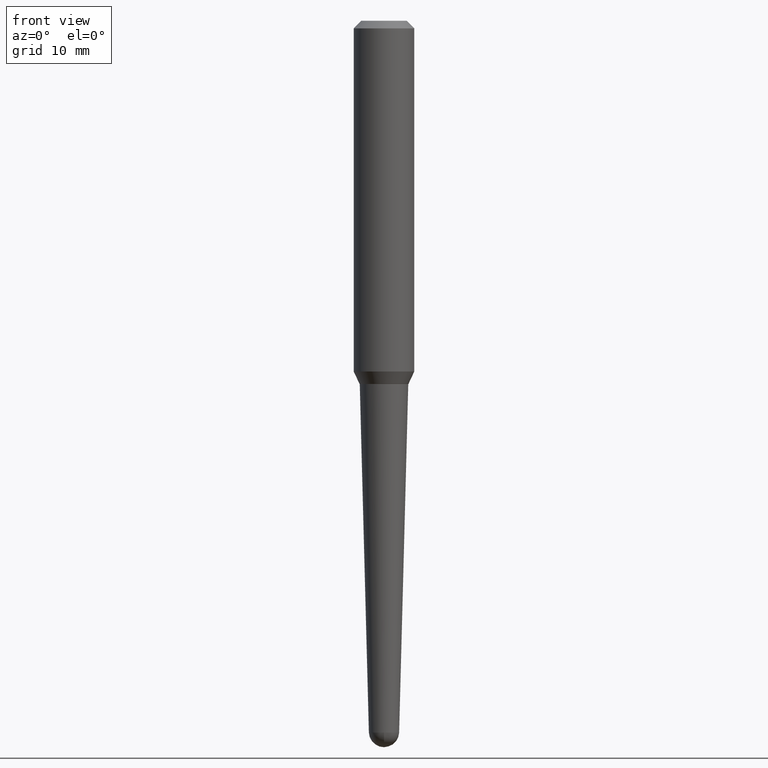
[diagram: clean part render]
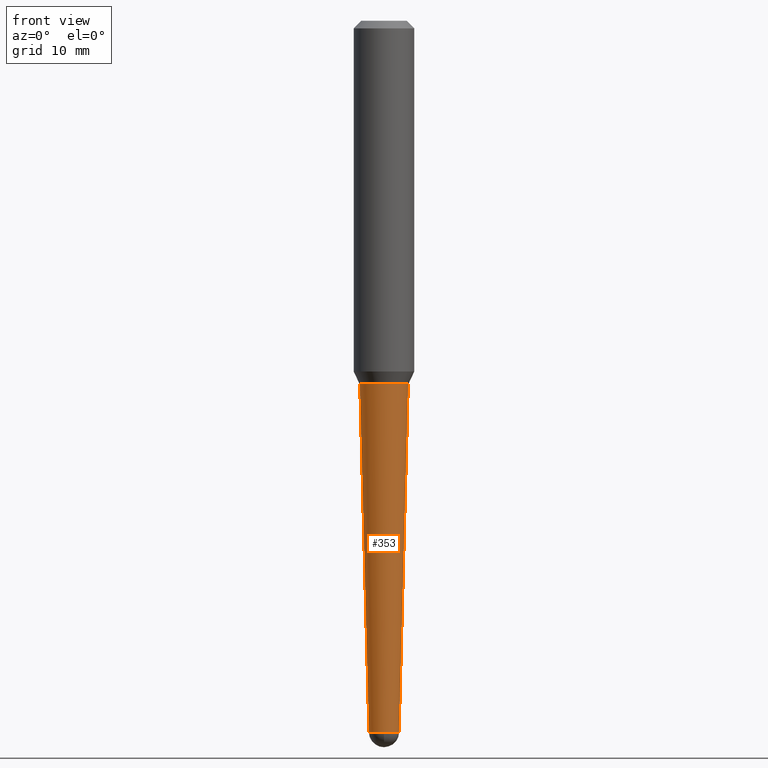
[diagram: same view with one face highlighted and labeled with its STEP entity id]
A machine part, front view. The second image highlights one B-rep face of the part: STEP entity #353.
In plain terms, the highlighted conical surface has half-angle 1.5 deg.
Its self-contained STEP definition (entity closure, byte-faithful):
#1 = ORIENTED_EDGE ( 'NONE', *, *, #314, .F. ) ;
#3 = EDGE_CURVE ( 'NONE', #26, #160, #276, .T. ) ;
#9 = DIRECTION ( 'NONE',  ( 1.000000000000000000, -6.982962677686277755E-15, 0.000000000000000000 ) ) ;
#15 = CARTESIAN_POINT ( 'NONE',  ( -0.06247858281097278671, -9.818001671690315419E-15, -2.939136059269242374 ) ) ;
#16 = VERTEX_POINT ( 'NONE', #432 ) ;
#20 = CARTESIAN_POINT ( 'NONE',  ( 7.187565550076840817E-29, -1.026193870325954003E-14, -2.939136059269242374 ) ) ;
#26 = VERTEX_POINT ( 'NONE', #319 ) ;
#28 = AXIS2_PLACEMENT_3D ( 'NONE', #116, #363, #9 ) ;
#66 = VECTOR ( 'NONE', #250, 39.37007874015748854 ) ;
#73 = CONICAL_SURFACE ( 'NONE', #381, 0.06247858281097278671, 0.02617993877991489637 ) ;
#83 = DIRECTION ( 'NONE',  ( 1.000000000000000000, -6.982962677686277755E-15, 0.000000000000000000 ) ) ;
#92 = ORIENTED_EDGE ( 'NONE', *, *, #117, .F. ) ;
#93 = FACE_OUTER_BOUND ( 'NONE', #132, .T. ) ;
#99 = ORIENTED_EDGE ( 'NONE', *, *, #3, .T. ) ;
#107 = CIRCLE ( 'NONE', #28, 0.06247858281097278671 ) ;
#116 = CARTESIAN_POINT ( 'NONE',  ( 7.187565550076840817E-29, -1.026193870325954003E-14, -2.939136059269242374 ) ) ;
#117 = EDGE_CURVE ( 'NONE', #337, #160, #197, .T. ) ;
#120 = DIRECTION ( 'NONE',  ( -2.445468806185136597E-29, 3.491481338843145583E-15, 1.000000000000000000 ) ) ;
#132 = EDGE_LOOP ( 'NONE', ( #1, #339, #299, #99, #92 ) ) ;
#153 = CARTESIAN_POINT ( 'NONE',  ( 7.187565550076840817E-29, -1.026193870325954003E-14, -2.939136059269242374 ) ) ;
#160 = VERTEX_POINT ( 'NONE', #392 ) ;
#190 = CIRCLE ( 'NONE', #437, 0.06247858281097278671 ) ;
#197 = CIRCLE ( 'NONE', #457, 0.1001636867863858471 ) ;
#212 = DIRECTION ( 'NONE',  ( -2.445468806185136597E-29, 3.491481338843145583E-15, 1.000000000000000000 ) ) ;
#226 = VERTEX_POINT ( 'NONE', #328 ) ;
#243 = CARTESIAN_POINT ( 'NONE',  ( 0.06247858281097278671, -1.069822431518329472E-14, -2.939136059269242374 ) ) ;
#250 = DIRECTION ( 'NONE',  ( 0.02617694830787310745, 3.307492242340416220E-15, 0.9996573249755572599 ) ) ;
#252 = EDGE_CURVE ( 'NONE', #16, #26, #107, .T. ) ;
#256 = DIRECTION ( 'NONE',  ( -0.02617694830787310745, 3.676283300035285798E-15, 0.9996573249755572599 ) ) ;
#268 = DIRECTION ( 'NONE',  ( -2.445468806185136597E-29, 3.491481338843145583E-15, 1.000000000000000000 ) ) ;
#276 = LINE ( 'NONE', #243, #66 ) ;
#279 = VECTOR ( 'NONE', #256, 39.37007874015748854 ) ;
#292 = LINE ( 'NONE', #15, #279 ) ;
#299 = ORIENTED_EDGE ( 'NONE', *, *, #252, .T. ) ;
#314 = EDGE_CURVE ( 'NONE', #226, #337, #292, .T. ) ;
#319 = CARTESIAN_POINT ( 'NONE',  ( 0.06247858281097278671, -8.317442804968401393E-15, -2.939136059269242374 ) ) ;
#321 = CARTESIAN_POINT ( 'NONE',  ( 3.668203209277704895E-29, -5.237222008264718177E-15, -1.500000000000000222 ) ) ;
#328 = CARTESIAN_POINT ( 'NONE',  ( -0.06247858281097278671, -7.171758939812435500E-15, -2.939136059269242374 ) ) ;
#337 = VERTEX_POINT ( 'NONE', #396 ) ;
#339 = ORIENTED_EDGE ( 'NONE', *, *, #343, .T. ) ;
#341 = DIRECTION ( 'NONE',  ( 1.000000000000000000, -6.982962677686277755E-15, 0.000000000000000000 ) ) ;
#343 = EDGE_CURVE ( 'NONE', #226, #16, #190, .T. ) ;
#352 = DIRECTION ( 'NONE',  ( 1.000000000000000000, -6.982962677686267499E-15, 0.000000000000000000 ) ) ;
#353 = ADVANCED_FACE ( 'NONE', ( #93 ), #73, .T. ) ;
#363 = DIRECTION ( 'NONE',  ( -2.445468806185136597E-29, 3.491481338843145583E-15, 1.000000000000000000 ) ) ;
#381 = AXIS2_PLACEMENT_3D ( 'NONE', #20, #268, #341 ) ;
#392 = CARTESIAN_POINT ( 'NONE',  ( 0.1001636867863858471, -5.936661294753508061E-15, -1.500000000000000222 ) ) ;
#396 = CARTESIAN_POINT ( 'NONE',  ( -0.1001636867863858471, -4.525516207934555582E-15, -1.500000000000000222 ) ) ;
#432 = CARTESIAN_POINT ( 'NONE',  ( -4.439370315691499629E-16, -0.06247858281098250116, -2.939136059269242374 ) ) ;
#437 = AXIS2_PLACEMENT_3D ( 'NONE', #153, #120, #83 ) ;
#457 = AXIS2_PLACEMENT_3D ( 'NONE', #321, #212, #352 ) ;